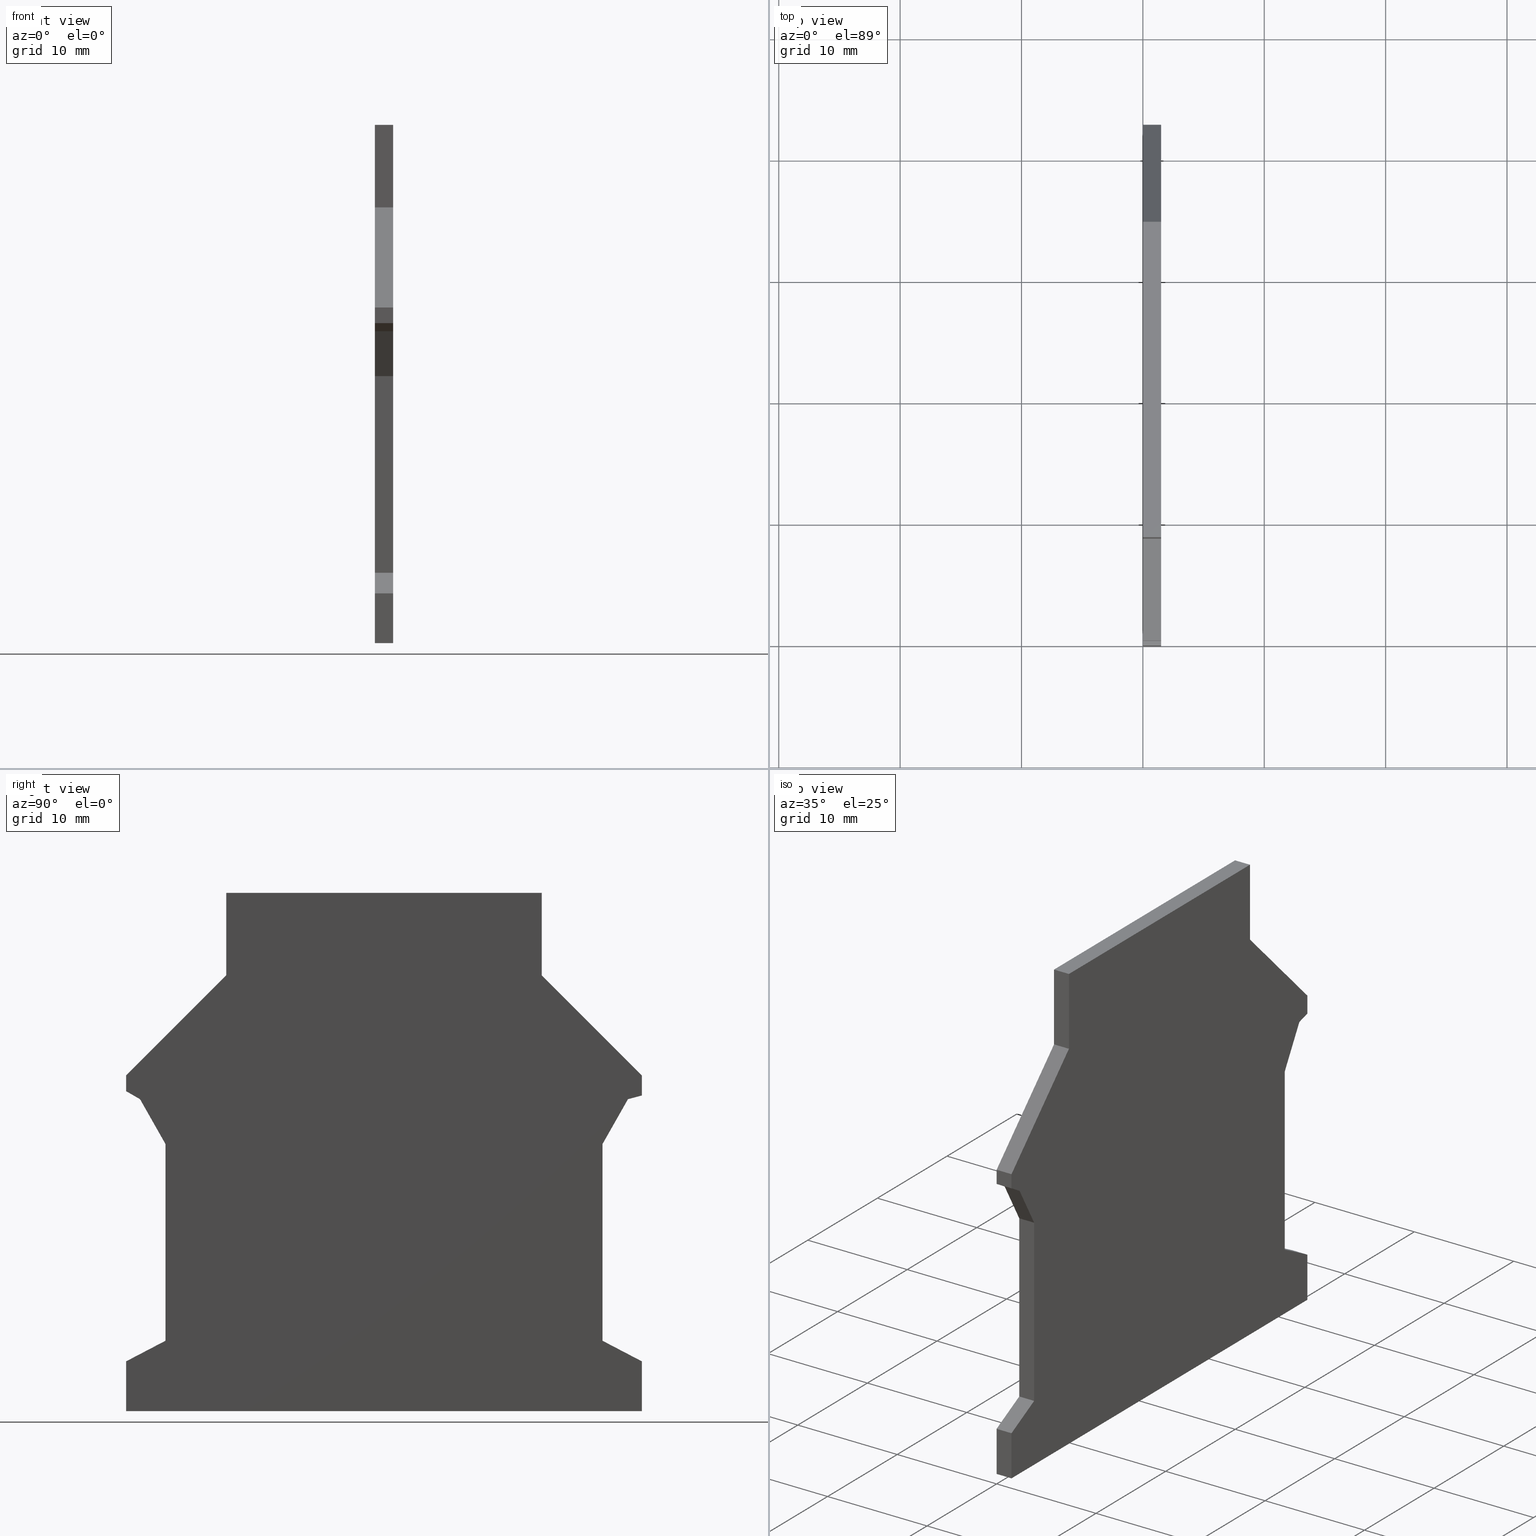
[diagram: canonical four-view strip — front | top / right | iso, engineering-drawing reading convention]
A machine part, canonical four-view strip (front | top / right | iso — engineering-drawing reading convention). The complete STEP part file that produces these views, byte-faithful:
ISO-10303-21;
HEADER;
FILE_DESCRIPTION(('Creo Elements/Direct Modeling STEP Export'),'2;1');
FILE_NAME(
'D:/temp/JobSpoolerServerData/JobServer Files/c538d3b7-5ca8-4cd9-8b99-3a
a1fee67038/work/output/model.stp','2018-01-26T16:11:36',(''),(''),
'Creo Elements/Direct Modeling STEP processor for AP214 (Solid Model)',
'Creo Elements/Direct Modeling 18.1I  14-Aug-2016 (C) Parametric Technol
ogy GmbH','');
FILE_SCHEMA(('AUTOMOTIVE_DESIGN { 1 0 10303 214 1 1 1 1 }'));
ENDSEC;
DATA;
#10=CARTESIAN_POINT('',(25.8666321988984,66.1035915835004,0.));
#20=DIRECTION('',(-0.869685915236196,-0.493605519458383,-0.));
#30=DIRECTION('',(-0.493605519458383,0.869685915236196,0.));
#40=AXIS2_PLACEMENT_3D('',#10,#20,#30);
#50=PLANE('',#40);
#60=CARTESIAN_POINT('',(27.9666321988984,62.4035915835004,0.));
#70=DIRECTION('',(0.,0.,-1.));
#80=VECTOR('',#70,1.);
#90=LINE('',#60,#80);
#100=CARTESIAN_POINT('',(27.9666321988984,62.4035915835004,
-7.78709572820555E-16));
#110=VERTEX_POINT('',#100);
#120=CARTESIAN_POINT('',(27.9666321988984,62.4035915835004,-1.5));
#130=VERTEX_POINT('',#120);
#140=EDGE_CURVE('',#110,#130,#90,.T.);
#150=ORIENTED_EDGE('',*,*,#140,.F.);
#160=CARTESIAN_POINT('',(27.9666321988984,62.4035915835004,-1.5));
#170=DIRECTION('',(-0.493605519458383,0.869685915236196,0.));
#180=VECTOR('',#170,1.);
#190=LINE('',#160,#180);
#200=CARTESIAN_POINT('',(25.8666321988984,66.1035915835004,-1.5));
#210=VERTEX_POINT('',#200);
#220=EDGE_CURVE('',#130,#210,#190,.T.);
#230=ORIENTED_EDGE('',*,*,#220,.F.);
#240=CARTESIAN_POINT('',(25.8666321988984,66.1035915835004,0.));
#250=DIRECTION('',(0.,0.,-1.));
#260=VECTOR('',#250,1.);
#270=LINE('',#240,#260);
#280=CARTESIAN_POINT('',(25.8666321988984,66.1035915835004,
-7.78709572820555E-16));
#290=VERTEX_POINT('',#280);
#300=EDGE_CURVE('',#290,#210,#270,.T.);
#310=ORIENTED_EDGE('',*,*,#300,.T.);
#320=CARTESIAN_POINT('',(63.3848868814258,0.,-7.78709572820555E-16));
#330=DIRECTION('',(0.493605519458383,-0.869685915236196,0.));
#340=VECTOR('',#330,1.);
#350=LINE('',#320,#340);
#360=EDGE_CURVE('',#290,#110,#350,.T.);
#370=ORIENTED_EDGE('',*,*,#360,.F.);
#380=EDGE_LOOP('',(#370,#310,#230,#150));
#390=FACE_OUTER_BOUND('',#380,.T.);
#400=ADVANCED_FACE('',(#390),#50,.T.);
#410=COLOUR_RGB('',0.,0.443137288093567,0.709803938865662);
#420=FILL_AREA_STYLE_COLOUR('',#410);
#430=FILL_AREA_STYLE('',(#420));
#440=SURFACE_STYLE_FILL_AREA(#430);
#450=SURFACE_SIDE_STYLE('',(#440));
#460=SURFACE_STYLE_USAGE(.BOTH.,#450);
#470=PRESENTATION_STYLE_ASSIGNMENT((#460));
#480=CARTESIAN_POINT('',(0.,0.,-1.5));
#490=DIRECTION('',(0.,0.,1.));
#500=DIRECTION('',(1.,0.,0.));
#510=AXIS2_PLACEMENT_3D('',#480,#490,#500);
#520=PLANE('',#510);
#530=CARTESIAN_POINT('',(32.9666321988984,0.,-1.5));
#540=DIRECTION('',(0.,-1.,0.));
#550=VECTOR('',#540,1.);
#560=LINE('',#530,#550);
#570=CARTESIAN_POINT('',(32.9666321988984,83.1035915835004,-1.5));
#580=VERTEX_POINT('',#570);
#590=CARTESIAN_POINT('',(32.9666321988984,76.3035915835004,-1.5));
#600=VERTEX_POINT('',#590);
#610=EDGE_CURVE('',#580,#600,#560,.T.);
#620=ORIENTED_EDGE('',*,*,#610,.F.);
#630=CARTESIAN_POINT('',(-43.336959384602,0.,-1.5));
#640=DIRECTION('',(0.707106781186547,0.707106781186548,0.));
#650=VECTOR('',#640,1.);
#660=LINE('',#630,#650);
#670=CARTESIAN_POINT('',(24.7166321988984,68.0535915835004,-1.5));
#680=VERTEX_POINT('',#670);
#690=EDGE_CURVE('',#680,#600,#660,.T.);
#700=ORIENTED_EDGE('',*,*,#690,.T.);
#710=CARTESIAN_POINT('',(24.7166321988984,0.,-1.5));
#720=DIRECTION('',(0.,-1.,0.));
#730=VECTOR('',#720,1.);
#740=LINE('',#710,#730);
#750=CARTESIAN_POINT('',(24.7166321988984,66.4117331547962,-1.5));
#760=VERTEX_POINT('',#750);
#770=EDGE_CURVE('',#680,#760,#740,.T.);
#780=ORIENTED_EDGE('',*,*,#770,.F.);
#790=CARTESIAN_POINT('',(0.,73.0345347921079,-1.5));
#800=DIRECTION('',(0.96592582628907,-0.258819045102515,0.));
#810=VECTOR('',#800,1.);
#820=LINE('',#790,#810);
#830=EDGE_CURVE('',#760,#210,#820,.T.);
#840=ORIENTED_EDGE('',*,*,#830,.F.);
#850=ORIENTED_EDGE('',*,*,#220,.T.);
#860=CARTESIAN_POINT('',(27.9666321988984,46.2035915835004,-1.5));
#870=DIRECTION('',(0.,1.,0.));
#880=VECTOR('',#870,1.);
#890=LINE('',#860,#880);
#900=CARTESIAN_POINT('',(27.9666321988984,46.2035915835004,-1.5));
#910=VERTEX_POINT('',#900);
#920=EDGE_CURVE('',#910,#130,#890,.T.);
#930=ORIENTED_EDGE('',*,*,#920,.T.);
#940=CARTESIAN_POINT('',(0.,31.5748916640767,-1.5));
#950=DIRECTION('',(-0.886098212808821,-0.463497526699996,0.));
#960=VECTOR('',#950,1.);
#970=LINE('',#940,#960);
#980=CARTESIAN_POINT('',(24.7166321988984,44.5035915835004,-1.5));
#990=VERTEX_POINT('',#980);
#1000=EDGE_CURVE('',#910,#990,#970,.T.);
#1010=ORIENTED_EDGE('',*,*,#1000,.F.);
#1020=CARTESIAN_POINT('',(24.7166321988984,0.,-1.5));
#1030=DIRECTION('',(0.,-1.,0.));
#1040=VECTOR('',#1030,1.);
#1050=LINE('',#1020,#1040);
#1060=CARTESIAN_POINT('',(24.7166321988984,40.4035915835004,-1.5));
#1070=VERTEX_POINT('',#1060);
#1080=EDGE_CURVE('',#990,#1070,#1050,.T.);
#1090=ORIENTED_EDGE('',*,*,#1080,.F.);
#1100=CARTESIAN_POINT('',(0.,40.4035915835004,-1.5));
#1110=DIRECTION('',(1.,0.,0.));
#1120=VECTOR('',#1110,1.);
#1130=LINE('',#1100,#1120);
#1140=CARTESIAN_POINT('',(67.2166321988984,40.4035915835004,-1.5));
#1150=VERTEX_POINT('',#1140);
#1160=EDGE_CURVE('',#1070,#1150,#1130,.T.);
#1170=ORIENTED_EDGE('',*,*,#1160,.F.);
#1180=CARTESIAN_POINT('',(67.2166321988984,0.,-1.5));
#1190=DIRECTION('',(0.,1.,0.));
#1200=VECTOR('',#1190,1.);
#1210=LINE('',#1180,#1200);
#1220=CARTESIAN_POINT('',(67.2166321988985,44.5035915835004,-1.5));
#1230=VERTEX_POINT('',#1220);
#1240=EDGE_CURVE('',#1150,#1230,#1210,.T.);
#1250=ORIENTED_EDGE('',*,*,#1240,.F.);
#1260=CARTESIAN_POINT('',(0.,79.6630607336934,-1.5));
#1270=DIRECTION('',(-0.88609821280882,0.463497526699998,0.));
#1280=VECTOR('',#1270,1.);
#1290=LINE('',#1260,#1280);
#1300=CARTESIAN_POINT('',(63.9666321988985,46.2035915835003,-1.5));
#1310=VERTEX_POINT('',#1300);
#1320=EDGE_CURVE('',#1230,#1310,#1290,.T.);
#1330=ORIENTED_EDGE('',*,*,#1320,.F.);
#1340=CARTESIAN_POINT('',(63.9666321988984,62.4035915835004,-1.5));
#1350=DIRECTION('',(0.,-1.,0.));
#1360=VECTOR('',#1350,1.);
#1370=LINE('',#1340,#1360);
#1380=CARTESIAN_POINT('',(63.9666321988984,62.4035915835004,-1.5));
#1390=VERTEX_POINT('',#1380);
#1400=EDGE_CURVE('',#1390,#1310,#1370,.T.);
#1410=ORIENTED_EDGE('',*,*,#1400,.T.);
#1420=CARTESIAN_POINT('',(66.0666321988984,66.1035915835004,-1.5));
#1430=DIRECTION('',(-0.493605519458384,-0.869685915236195,0.));
#1440=VECTOR('',#1430,1.);
#1450=LINE('',#1420,#1440);
#1460=CARTESIAN_POINT('',(66.0666321988984,66.1035915835004,-1.5));
#1470=VERTEX_POINT('',#1460);
#1480=EDGE_CURVE('',#1470,#1390,#1450,.T.);
#1490=ORIENTED_EDGE('',*,*,#1480,.T.);
#1500=CARTESIAN_POINT('',(0.,27.9600036990134,-1.5));
#1510=DIRECTION('',(0.866025403784433,0.50000000000001,0.));
#1520=VECTOR('',#1510,1.);
#1530=LINE('',#1500,#1520);
#1540=CARTESIAN_POINT('',(67.2166321988984,66.7675443930685,-1.5));
#1550=VERTEX_POINT('',#1540);
#1560=EDGE_CURVE('',#1470,#1550,#1530,.T.);
#1570=ORIENTED_EDGE('',*,*,#1560,.F.);
#1580=CARTESIAN_POINT('',(67.2166321988984,0.,-1.5));
#1590=DIRECTION('',(0.,1.,0.));
#1600=VECTOR('',#1590,1.);
#1610=LINE('',#1580,#1600);
#1620=CARTESIAN_POINT('',(67.2166321988984,68.0535915835004,-1.5));
#1630=VERTEX_POINT('',#1620);
#1640=EDGE_CURVE('',#1550,#1630,#1610,.T.);
#1650=ORIENTED_EDGE('',*,*,#1640,.F.);
#1660=CARTESIAN_POINT('',(135.270223782399,0.,-1.5));
#1670=DIRECTION('',(0.707106781186547,-0.707106781186548,0.));
#1680=VECTOR('',#1670,1.);
#1690=LINE('',#1660,#1680);
#1700=CARTESIAN_POINT('',(58.9666321988984,76.3035915835004,-1.5));
#1710=VERTEX_POINT('',#1700);
#1720=EDGE_CURVE('',#1710,#1630,#1690,.T.);
#1730=ORIENTED_EDGE('',*,*,#1720,.T.);
#1740=CARTESIAN_POINT('',(58.9666321988984,0.,-1.5));
#1750=DIRECTION('',(0.,1.,0.));
#1760=VECTOR('',#1750,1.);
#1770=LINE('',#1740,#1760);
#1780=CARTESIAN_POINT('',(58.9666321988984,83.1035915835004,-1.5));
#1790=VERTEX_POINT('',#1780);
#1800=EDGE_CURVE('',#1710,#1790,#1770,.T.);
#1810=ORIENTED_EDGE('',*,*,#1800,.F.);
#1820=CARTESIAN_POINT('',(0.,83.1035915835004,-1.5));
#1830=DIRECTION('',(-1.,0.,0.));
#1840=VECTOR('',#1830,1.);
#1850=LINE('',#1820,#1840);
#1860=EDGE_CURVE('',#1790,#580,#1850,.T.);
#1870=ORIENTED_EDGE('',*,*,#1860,.F.);
#1880=EDGE_LOOP('',(#1870,#1810,#1730,#1650,#1570,#1490,#1410,#1330,
#1250,#1170,#1090,#1010,#930,#850,#840,#780,#700,#620));
#1890=FACE_OUTER_BOUND('',#1880,.T.);
#1900=ADVANCED_FACE('',(#1890),#520,.F.);
#1910=COLOUR_RGB('',0.,0.443137288093567,0.709803938865662);
#1920=FILL_AREA_STYLE_COLOUR('',#1910);
#1930=FILL_AREA_STYLE('',(#1920));
#1940=SURFACE_STYLE_FILL_AREA(#1930);
#1950=SURFACE_SIDE_STYLE('',(#1940));
#1960=SURFACE_STYLE_USAGE(.BOTH.,#1950);
#1970=PRESENTATION_STYLE_ASSIGNMENT((#1960));
#1980=CARTESIAN_POINT('',(43.3666321988984,83.1035915835004,0.));
#1990=DIRECTION('',(-0.,1.,0.));
#2000=DIRECTION('',(1.,0.,0.));
#2010=AXIS2_PLACEMENT_3D('',#1980,#1990,#2000);
#2020=PLANE('',#2010);
#2030=CARTESIAN_POINT('',(32.9666321988984,83.1035915835004,0.));
#2040=DIRECTION('',(0.,0.,1.));
#2050=VECTOR('',#2040,1.);
#2060=LINE('',#2030,#2050);
#2070=CARTESIAN_POINT('',(32.9666321988984,83.1035915835004,
8.86450742699044E-16));
#2080=VERTEX_POINT('',#2070);
#2090=EDGE_CURVE('',#580,#2080,#2060,.T.);
#2100=ORIENTED_EDGE('',*,*,#2090,.T.);
#2110=ORIENTED_EDGE('',*,*,#1860,.T.);
#2120=CARTESIAN_POINT('',(58.9666321988984,83.1035915835004,0.));
#2130=DIRECTION('',(0.,0.,1.));
#2140=VECTOR('',#2130,1.);
#2150=LINE('',#2120,#2140);
#2160=CARTESIAN_POINT('',(58.9666321988984,83.1035915835004,
-5.36844862369917E-16));
#2170=VERTEX_POINT('',#2160);
#2180=EDGE_CURVE('',#1790,#2170,#2150,.T.);
#2190=ORIENTED_EDGE('',*,*,#2180,.F.);
#2200=CARTESIAN_POINT('',(0.,83.1035915835004,2.69111469356893E-15));
#2210=DIRECTION('',(-1.,0.,5.47421386564985E-17));
#2220=VECTOR('',#2210,1.);
#2230=LINE('',#2200,#2220);
#2240=EDGE_CURVE('',#2170,#2080,#2230,.T.);
#2250=ORIENTED_EDGE('',*,*,#2240,.F.);
#2260=EDGE_LOOP('',(#2250,#2190,#2110,#2100));
#2270=FACE_OUTER_BOUND('',#2260,.T.);
#2280=ADVANCED_FACE('',(#2270),#2020,.T.);
#2290=COLOUR_RGB('',0.,0.443137288093567,0.709803938865662);
#2300=FILL_AREA_STYLE_COLOUR('',#2290);
#2310=FILL_AREA_STYLE('',(#2300));
#2320=SURFACE_STYLE_FILL_AREA(#2310);
#2330=SURFACE_SIDE_STYLE('',(#2320));
#2340=SURFACE_STYLE_USAGE(.BOTH.,#2330);
#2350=PRESENTATION_STYLE_ASSIGNMENT((#2340));
#2360=CARTESIAN_POINT('',(67.2166321988984,41.4035915835004,0.));
#2370=DIRECTION('',(1.,0.,0.));
#2380=DIRECTION('',(0.,-1.,0.));
#2390=AXIS2_PLACEMENT_3D('',#2360,#2370,#2380);
#2400=PLANE('',#2390);
#2410=CARTESIAN_POINT('',(67.2166321988984,44.5035915835004,0.));
#2420=DIRECTION('',(0.,0.,1.));
#2430=VECTOR('',#2420,1.);
#2440=LINE('',#2410,#2430);
#2450=CARTESIAN_POINT('',(67.2166321988985,44.5035915835004,
-1.51978719215006E-15));
#2460=VERTEX_POINT('',#2450);
#2470=EDGE_CURVE('',#1230,#2460,#2440,.T.);
#2480=ORIENTED_EDGE('',*,*,#2470,.T.);
#2490=ORIENTED_EDGE('',*,*,#1240,.T.);
#2500=CARTESIAN_POINT('',(67.2166321988984,40.4035915835004,0.));
#2510=DIRECTION('',(0.,0.,1.));
#2520=VECTOR('',#2510,1.);
#2530=LINE('',#2500,#2520);
#2540=CARTESIAN_POINT('',(67.2166321988984,40.4035915835004,
-9.8846750628603E-16));
#2550=VERTEX_POINT('',#2540);
#2560=EDGE_CURVE('',#1150,#2550,#2530,.T.);
#2570=ORIENTED_EDGE('',*,*,#2560,.F.);
#2580=CARTESIAN_POINT('',(67.2166321988984,0.,-9.8846750628603E-16));
#2590=DIRECTION('',(0.,1.,0.));
#2600=VECTOR('',#2590,1.);
#2610=LINE('',#2580,#2600);
#2620=EDGE_CURVE('',#2550,#2460,#2610,.T.);
#2630=ORIENTED_EDGE('',*,*,#2620,.F.);
#2640=EDGE_LOOP('',(#2630,#2570,#2490,#2480));
#2650=FACE_OUTER_BOUND('',#2640,.T.);
#2660=ADVANCED_FACE('',(#2650),#2400,.T.);
#2670=COLOUR_RGB('',0.,0.443137288093567,0.709803938865662);
#2680=FILL_AREA_STYLE_COLOUR('',#2670);
#2690=FILL_AREA_STYLE('',(#2680));
#2700=SURFACE_STYLE_FILL_AREA(#2690);
#2710=SURFACE_SIDE_STYLE('',(#2700));
#2720=SURFACE_STYLE_USAGE(.BOTH.,#2710);
#2730=PRESENTATION_STYLE_ASSIGNMENT((#2720));
#2740=CARTESIAN_POINT('',(24.7166321988984,67.8464848023139,0.));
#2750=DIRECTION('',(-1.,0.,0.));
#2760=DIRECTION('',(0.,1.,0.));
#2770=AXIS2_PLACEMENT_3D('',#2740,#2750,#2760);
#2780=PLANE('',#2770);
#2790=CARTESIAN_POINT('',(24.7166321988984,66.4117331547962,0.));
#2800=DIRECTION('',(0.,0.,1.));
#2810=VECTOR('',#2800,1.);
#2820=LINE('',#2790,#2810);
#2830=CARTESIAN_POINT('',(24.7166321988984,66.4117331547962,
1.33807338661516E-15));
#2840=VERTEX_POINT('',#2830);
#2850=EDGE_CURVE('',#760,#2840,#2820,.T.);
#2860=ORIENTED_EDGE('',*,*,#2850,.T.);
#2870=ORIENTED_EDGE('',*,*,#770,.T.);
#2880=CARTESIAN_POINT('',(24.7166321988984,68.0535915835004,0.));
#2890=DIRECTION('',(0.,0.,1.));
#2900=VECTOR('',#2890,1.);
#2910=LINE('',#2880,#2900);
#2920=CARTESIAN_POINT('',(24.7166321988984,68.0535915835004,
5.06347253315185E-15));
#2930=VERTEX_POINT('',#2920);
#2940=EDGE_CURVE('',#680,#2930,#2910,.T.);
#2950=ORIENTED_EDGE('',*,*,#2940,.F.);
#2960=CARTESIAN_POINT('',(24.7166321988984,0.,1.33807338661516E-15));
#2970=DIRECTION('',(0.,-1.,0.));
#2980=VECTOR('',#2970,1.);
#2990=LINE('',#2960,#2980);
#3000=EDGE_CURVE('',#2930,#2840,#2990,.T.);
#3010=ORIENTED_EDGE('',*,*,#3000,.F.);
#3020=EDGE_LOOP('',(#3010,#2950,#2870,#2860));
#3030=FACE_OUTER_BOUND('',#3020,.T.);
#3040=ADVANCED_FACE('',(#3030),#2780,.T.);
#3050=COLOUR_RGB('',0.,0.443137288093567,0.709803938865662);
#3060=FILL_AREA_STYLE_COLOUR('',#3050);
#3070=FILL_AREA_STYLE('',(#3060));
#3080=SURFACE_STYLE_FILL_AREA(#3070);
#3090=SURFACE_SIDE_STYLE('',(#3080));
#3100=SURFACE_STYLE_USAGE(.BOTH.,#3090);
#3110=PRESENTATION_STYLE_ASSIGNMENT((#3100));
#3120=CARTESIAN_POINT('',(25.4578698380482,66.2131191279864,0.));
#3130=DIRECTION('',(-0.258819045102515,-0.96592582628907,-0.));
#3140=DIRECTION('',(-0.96592582628907,0.258819045102515,0.));
#3150=AXIS2_PLACEMENT_3D('',#3120,#3130,#3140);
#3160=PLANE('',#3150);
#3170=CARTESIAN_POINT('',(0.,73.0345347921079,2.69111469356893E-15));
#3180=DIRECTION('',(0.96592582628907,-0.258819045102515,
-5.55111512312578E-17));
#3190=VECTOR('',#3180,1.);
#3200=LINE('',#3170,#3190);
#3210=EDGE_CURVE('',#2840,#290,#3200,.T.);
#3220=ORIENTED_EDGE('',*,*,#3210,.F.);
#3230=ORIENTED_EDGE('',*,*,#300,.F.);
#3240=ORIENTED_EDGE('',*,*,#830,.T.);
#3250=ORIENTED_EDGE('',*,*,#2850,.F.);
#3260=EDGE_LOOP('',(#3250,#3240,#3230,#3220));
#3270=FACE_OUTER_BOUND('',#3260,.T.);
#3280=ADVANCED_FACE('',(#3270),#3160,.T.);
#3290=COLOUR_RGB('',0.,0.443137288093567,0.709803938865662);
#3300=FILL_AREA_STYLE_COLOUR('',#3290);
#3310=FILL_AREA_STYLE('',(#3300));
#3320=SURFACE_STYLE_FILL_AREA(#3310);
#3330=SURFACE_SIDE_STYLE('',(#3320));
#3340=SURFACE_STYLE_USAGE(.BOTH.,#3330);
#3350=PRESENTATION_STYLE_ASSIGNMENT((#3340));
#3360=CARTESIAN_POINT('',(32.9666321988984,76.3035915835004,0.));
#3370=DIRECTION('',(-0.707106781186548,0.707106781186547,0.));
#3380=DIRECTION('',(0.707106781186547,0.707106781186548,0.));
#3390=AXIS2_PLACEMENT_3D('',#3360,#3370,#3380);
#3400=PLANE('',#3390);
#3410=ORIENTED_EDGE('',*,*,#2940,.T.);
#3420=ORIENTED_EDGE('',*,*,#690,.F.);
#3430=CARTESIAN_POINT('',(32.9666321988984,76.3035915835004,0.));
#3440=DIRECTION('',(0.,0.,-1.));
#3450=VECTOR('',#3440,1.);
#3460=LINE('',#3430,#3450);
#3470=CARTESIAN_POINT('',(32.9666321988984,76.3035915835004,
8.86450742699044E-16));
#3480=VERTEX_POINT('',#3470);
#3490=EDGE_CURVE('',#3480,#600,#3460,.T.);
#3500=ORIENTED_EDGE('',*,*,#3490,.T.);
#3510=CARTESIAN_POINT('',(-43.336959384602,0.,5.06347253315185E-15));
#3520=DIRECTION('',(-0.707106781186547,-0.707106781186548,0.));
#3530=VECTOR('',#3520,1.);
#3540=LINE('',#3510,#3530);
#3550=EDGE_CURVE('',#3480,#2930,#3540,.T.);
#3560=ORIENTED_EDGE('',*,*,#3550,.F.);
#3570=EDGE_LOOP('',(#3560,#3500,#3420,#3410));
#3580=FACE_OUTER_BOUND('',#3570,.T.);
#3590=ADVANCED_FACE('',(#3580),#3400,.T.);
#3600=COLOUR_RGB('',0.,0.443137288093567,0.709803938865662);
#3610=FILL_AREA_STYLE_COLOUR('',#3600);
#3620=FILL_AREA_STYLE('',(#3610));
#3630=SURFACE_STYLE_FILL_AREA(#3620);
#3640=SURFACE_SIDE_STYLE('',(#3630));
#3650=SURFACE_STYLE_USAGE(.BOTH.,#3640);
#3660=PRESENTATION_STYLE_ASSIGNMENT((#3650));
#3670=CARTESIAN_POINT('',(32.9666321988984,81.6035915835004,0.));
#3680=DIRECTION('',(-1.,0.,0.));
#3690=DIRECTION('',(0.,1.,0.));
#3700=AXIS2_PLACEMENT_3D('',#3670,#3680,#3690);
#3710=PLANE('',#3700);
#3720=CARTESIAN_POINT('',(32.9666321988984,0.,8.86450742699044E-16));
#3730=DIRECTION('',(0.,-1.,0.));
#3740=VECTOR('',#3730,1.);
#3750=LINE('',#3720,#3740);
#3760=EDGE_CURVE('',#2080,#3480,#3750,.T.);
#3770=ORIENTED_EDGE('',*,*,#3760,.F.);
#3780=ORIENTED_EDGE('',*,*,#3490,.F.);
#3790=ORIENTED_EDGE('',*,*,#610,.T.);
#3800=ORIENTED_EDGE('',*,*,#2090,.F.);
#3810=EDGE_LOOP('',(#3800,#3790,#3780,#3770));
#3820=FACE_OUTER_BOUND('',#3810,.T.);
#3830=ADVANCED_FACE('',(#3820),#3710,.T.);
#3840=COLOUR_RGB('',0.,0.443137288093567,0.709803938865662);
#3850=FILL_AREA_STYLE_COLOUR('',#3840);
#3860=FILL_AREA_STYLE('',(#3850));
#3870=SURFACE_STYLE_FILL_AREA(#3860);
#3880=SURFACE_SIDE_STYLE('',(#3870));
#3890=SURFACE_STYLE_USAGE(.BOTH.,#3880);
#3900=PRESENTATION_STYLE_ASSIGNMENT((#3890));
#3910=CARTESIAN_POINT('',(18.7384011988984,36.1335891835004,
1.66533453693773E-15));
#3920=DIRECTION('',(-5.47421386564985E-17,-0.,-1.));
#3930=DIRECTION('',(1.,0.,-5.47421386564985E-17));
#3940=AXIS2_PLACEMENT_3D('',#3910,#3920,#3930);
#3950=PLANE('',#3940);
#3960=ORIENTED_EDGE('',*,*,#2240,.T.);
#3970=CARTESIAN_POINT('',(58.9666321988984,0.,-5.36844862369917E-16));
#3980=DIRECTION('',(0.,1.,0.));
#3990=VECTOR('',#3980,1.);
#4000=LINE('',#3970,#3990);
#4010=CARTESIAN_POINT('',(58.9666321988984,76.3035915835004,
-4.71386665282273E-15));
#4020=VERTEX_POINT('',#4010);
#4030=EDGE_CURVE('',#4020,#2170,#4000,.T.);
#4040=ORIENTED_EDGE('',*,*,#4030,.T.);
#4050=CARTESIAN_POINT('',(135.270223782399,0.,-4.71386665282273E-15));
#4060=DIRECTION('',(-0.707106781186547,0.707106781186548,0.));
#4070=VECTOR('',#4060,1.);
#4080=LINE('',#4050,#4070);
#4090=CARTESIAN_POINT('',(67.2166321988984,68.0535915835004,
-9.8846750628603E-16));
#4100=VERTEX_POINT('',#4090);
#4110=EDGE_CURVE('',#4100,#4020,#4080,.T.);
#4120=ORIENTED_EDGE('',*,*,#4110,.T.);
#4130=CARTESIAN_POINT('',(67.2166321988984,0.,-9.8846750628603E-16));
#4140=DIRECTION('',(0.,1.,0.));
#4150=VECTOR('',#4140,1.);
#4160=LINE('',#4130,#4150);
#4170=CARTESIAN_POINT('',(67.2166321988984,66.7675443930685,
-9.8846750628603E-16));
#4180=VERTEX_POINT('',#4170);
#4190=EDGE_CURVE('',#4180,#4100,#4160,.T.);
#4200=ORIENTED_EDGE('',*,*,#4190,.T.);
#4210=CARTESIAN_POINT('',(0.,27.9600036990134,2.69111469356893E-15));
#4220=DIRECTION('',(0.866025403784433,0.50000000000001,0.));
#4230=VECTOR('',#4220,1.);
#4240=LINE('',#4210,#4230);
#4250=CARTESIAN_POINT('',(66.0666321988984,66.1035915835004,
1.12831545314969E-15));
#4260=VERTEX_POINT('',#4250);
#4270=EDGE_CURVE('',#4260,#4180,#4240,.T.);
#4280=ORIENTED_EDGE('',*,*,#4270,.T.);
#4290=CARTESIAN_POINT('',(28.5483775163709,0.,1.12831545314969E-15));
#4300=DIRECTION('',(0.493605519458384,0.869685915236195,0.));
#4310=VECTOR('',#4300,1.);
#4320=LINE('',#4290,#4310);
#4330=CARTESIAN_POINT('',(63.9666321988984,62.4035915835004,
1.12831545314969E-15));
#4340=VERTEX_POINT('',#4330);
#4350=EDGE_CURVE('',#4340,#4260,#4320,.T.);
#4360=ORIENTED_EDGE('',*,*,#4350,.T.);
#4370=CARTESIAN_POINT('',(63.9666321988984,0.,-8.1055555565241E-16));
#4380=DIRECTION('',(0.,1.,0.));
#4390=VECTOR('',#4380,1.);
#4400=LINE('',#4370,#4390);
#4410=CARTESIAN_POINT('',(63.9666321988985,46.2035915835003,
-1.31618533527496E-15));
#4420=VERTEX_POINT('',#4410);
#4430=EDGE_CURVE('',#4420,#4340,#4400,.T.);
#4440=ORIENTED_EDGE('',*,*,#4430,.T.);
#4450=CARTESIAN_POINT('',(0.,79.6630607336934,2.69111469356893E-15));
#4460=DIRECTION('',(-0.88609821280882,0.463497526699998,
5.55111512312578E-17));
#4470=VECTOR('',#4460,1.);
#4480=LINE('',#4450,#4470);
#4490=EDGE_CURVE('',#2460,#4420,#4480,.T.);
#4500=ORIENTED_EDGE('',*,*,#4490,.T.);
#4510=ORIENTED_EDGE('',*,*,#2620,.T.);
#4520=CARTESIAN_POINT('',(0.,40.4035915835004,2.69111469356893E-15));
#4530=DIRECTION('',(1.,0.,-5.47421386564985E-17));
#4540=VECTOR('',#4530,1.);
#4550=LINE('',#4520,#4540);
#4560=CARTESIAN_POINT('',(24.7166321988984,40.4035915835004,
1.33807338661516E-15));
#4570=VERTEX_POINT('',#4560);
#4580=EDGE_CURVE('',#4570,#2550,#4550,.T.);
#4590=ORIENTED_EDGE('',*,*,#4580,.T.);
#4600=CARTESIAN_POINT('',(24.7166321988984,0.,1.33807338661516E-15));
#4610=DIRECTION('',(0.,-1.,0.));
#4620=VECTOR('',#4610,1.);
#4630=LINE('',#4600,#4620);
#4640=CARTESIAN_POINT('',(24.7166321988984,44.5035915835004,
1.1426986285244E-15));
#4650=VERTEX_POINT('',#4640);
#4660=EDGE_CURVE('',#4650,#4570,#4630,.T.);
#4670=ORIENTED_EDGE('',*,*,#4660,.T.);
#4680=CARTESIAN_POINT('',(0.,31.5748916640767,2.69111469356893E-15));
#4690=DIRECTION('',(-0.886098212808821,-0.463497526699996,
5.55111512312578E-17));
#4700=VECTOR('',#4690,1.);
#4710=LINE('',#4680,#4700);
#4720=CARTESIAN_POINT('',(27.9666321988984,46.2035915835004,
1.16016143598154E-15));
#4730=VERTEX_POINT('',#4720);
#4740=EDGE_CURVE('',#4730,#4650,#4710,.T.);
#4750=ORIENTED_EDGE('',*,*,#4740,.T.);
#4760=CARTESIAN_POINT('',(27.9666321988984,0.,1.16016143598154E-15));
#4770=DIRECTION('',(0.,-1.,0.));
#4780=VECTOR('',#4770,1.);
#4790=LINE('',#4760,#4780);
#4800=EDGE_CURVE('',#110,#4730,#4790,.T.);
#4810=ORIENTED_EDGE('',*,*,#4800,.T.);
#4820=ORIENTED_EDGE('',*,*,#360,.T.);
#4830=ORIENTED_EDGE('',*,*,#3210,.T.);
#4840=ORIENTED_EDGE('',*,*,#3000,.T.);
#4850=ORIENTED_EDGE('',*,*,#3550,.T.);
#4860=ORIENTED_EDGE('',*,*,#3760,.T.);
#4870=EDGE_LOOP('',(#4860,#4850,#4840,#4830,#4820,#4810,#4750,#4670,
#4590,#4510,#4500,#4440,#4360,#4280,#4200,#4120,#4040,#3960));
#4880=FACE_OUTER_BOUND('',#4870,.T.);
#4890=ADVANCED_FACE('',(#4880),#3950,.F.);
#4900=COLOUR_RGB('',0.,0.443137288093567,0.709803938865662);
#4910=FILL_AREA_STYLE_COLOUR('',#4900);
#4920=FILL_AREA_STYLE('',(#4910));
#4930=SURFACE_STYLE_FILL_AREA(#4920);
#4940=SURFACE_SIDE_STYLE('',(#4930));
#4950=SURFACE_STYLE_USAGE(.BOTH.,#4940);
#4960=PRESENTATION_STYLE_ASSIGNMENT((#4950));
#4970=CARTESIAN_POINT('',(27.9666321988984,62.4035915835004,0.));
#4980=DIRECTION('',(-1.,0.,0.));
#4990=DIRECTION('',(0.,1.,0.));
#5000=AXIS2_PLACEMENT_3D('',#4970,#4980,#4990);
#5010=PLANE('',#5000);
#5020=CARTESIAN_POINT('',(27.9666321988984,46.2035915835004,0.));
#5030=DIRECTION('',(0.,0.,-1.));
#5040=VECTOR('',#5030,1.);
#5050=LINE('',#5020,#5040);
#5060=EDGE_CURVE('',#4730,#910,#5050,.T.);
#5070=ORIENTED_EDGE('',*,*,#5060,.F.);
#5080=ORIENTED_EDGE('',*,*,#920,.F.);
#5090=ORIENTED_EDGE('',*,*,#140,.T.);
#5100=ORIENTED_EDGE('',*,*,#4800,.F.);
#5110=EDGE_LOOP('',(#5100,#5090,#5080,#5070));
#5120=FACE_OUTER_BOUND('',#5110,.T.);
#5130=ADVANCED_FACE('',(#5120),#5010,.T.);
#5140=COLOUR_RGB('',0.,0.443137288093567,0.709803938865662);
#5150=FILL_AREA_STYLE_COLOUR('',#5140);
#5160=FILL_AREA_STYLE('',(#5150));
#5170=SURFACE_STYLE_FILL_AREA(#5160);
#5180=SURFACE_SIDE_STYLE('',(#5170));
#5190=SURFACE_STYLE_USAGE(.BOTH.,#5180);
#5200=PRESENTATION_STYLE_ASSIGNMENT((#5190));
#5210=CARTESIAN_POINT('',(58.9666321988984,76.3035915835004,0.));
#5220=DIRECTION('',(1.,0.,0.));
#5230=DIRECTION('',(0.,-1.,0.));
#5240=AXIS2_PLACEMENT_3D('',#5210,#5220,#5230);
#5250=PLANE('',#5240);
#5260=ORIENTED_EDGE('',*,*,#2180,.T.);
#5270=ORIENTED_EDGE('',*,*,#1800,.T.);
#5280=CARTESIAN_POINT('',(58.9666321988984,76.3035915835004,0.));
#5290=DIRECTION('',(0.,0.,-1.));
#5300=VECTOR('',#5290,1.);
#5310=LINE('',#5280,#5300);
#5320=EDGE_CURVE('',#4020,#1710,#5310,.T.);
#5330=ORIENTED_EDGE('',*,*,#5320,.T.);
#5340=ORIENTED_EDGE('',*,*,#4030,.F.);
#5350=EDGE_LOOP('',(#5340,#5330,#5270,#5260));
#5360=FACE_OUTER_BOUND('',#5350,.T.);
#5370=ADVANCED_FACE('',(#5360),#5250,.T.);
#5380=COLOUR_RGB('',0.,0.443137288093567,0.709803938865662);
#5390=FILL_AREA_STYLE_COLOUR('',#5380);
#5400=FILL_AREA_STYLE('',(#5390));
#5410=SURFACE_STYLE_FILL_AREA(#5400);
#5420=SURFACE_SIDE_STYLE('',(#5410));
#5430=SURFACE_STYLE_USAGE(.BOTH.,#5420);
#5440=PRESENTATION_STYLE_ASSIGNMENT((#5430));
#5450=CARTESIAN_POINT('',(67.0701855894917,68.2000381929071,0.));
#5460=DIRECTION('',(0.707106781186548,0.707106781186547,0.));
#5470=DIRECTION('',(0.707106781186547,-0.707106781186548,0.));
#5480=AXIS2_PLACEMENT_3D('',#5450,#5460,#5470);
#5490=PLANE('',#5480);
#5500=ORIENTED_EDGE('',*,*,#4110,.F.);
#5510=ORIENTED_EDGE('',*,*,#5320,.F.);
#5520=ORIENTED_EDGE('',*,*,#1720,.F.);
#5530=CARTESIAN_POINT('',(67.2166321988984,68.0535915835004,0.));
#5540=DIRECTION('',(0.,0.,1.));
#5550=VECTOR('',#5540,1.);
#5560=LINE('',#5530,#5550);
#5570=EDGE_CURVE('',#1630,#4100,#5560,.T.);
#5580=ORIENTED_EDGE('',*,*,#5570,.F.);
#5590=EDGE_LOOP('',(#5580,#5520,#5510,#5500));
#5600=FACE_OUTER_BOUND('',#5590,.T.);
#5610=ADVANCED_FACE('',(#5600),#5490,.T.);
#5620=COLOUR_RGB('',0.,0.443137288093567,0.709803938865662);
#5630=FILL_AREA_STYLE_COLOUR('',#5620);
#5640=FILL_AREA_STYLE('',(#5630));
#5650=SURFACE_STYLE_FILL_AREA(#5640);
#5660=SURFACE_SIDE_STYLE('',(#5650));
#5670=SURFACE_STYLE_USAGE(.BOTH.,#5660);
#5680=PRESENTATION_STYLE_ASSIGNMENT((#5670));
#5690=CARTESIAN_POINT('',(27.9666321988984,46.2035915835004,0.));
#5700=DIRECTION('',(-0.463497526699996,0.886098212808821,0.));
#5710=DIRECTION('',(0.886098212808821,0.463497526699996,0.));
#5720=AXIS2_PLACEMENT_3D('',#5690,#5700,#5710);
#5730=PLANE('',#5720);
#5740=CARTESIAN_POINT('',(24.7166321988984,44.5035915835004,0.));
#5750=DIRECTION('',(0.,0.,1.));
#5760=VECTOR('',#5750,1.);
#5770=LINE('',#5740,#5760);
#5780=EDGE_CURVE('',#990,#4650,#5770,.T.);
#5790=ORIENTED_EDGE('',*,*,#5780,.T.);
#5800=ORIENTED_EDGE('',*,*,#1000,.T.);
#5810=ORIENTED_EDGE('',*,*,#5060,.T.);
#5820=ORIENTED_EDGE('',*,*,#4740,.F.);
#5830=EDGE_LOOP('',(#5820,#5810,#5800,#5790));
#5840=FACE_OUTER_BOUND('',#5830,.T.);
#5850=ADVANCED_FACE('',(#5840),#5730,.T.);
#5860=COLOUR_RGB('',0.,0.443137288093567,0.709803938865662);
#5870=FILL_AREA_STYLE_COLOUR('',#5860);
#5880=FILL_AREA_STYLE('',(#5870));
#5890=SURFACE_STYLE_FILL_AREA(#5880);
#5900=SURFACE_SIDE_STYLE('',(#5890));
#5910=SURFACE_STYLE_USAGE(.BOTH.,#5900);
#5920=PRESENTATION_STYLE_ASSIGNMENT((#5910));
#5930=CARTESIAN_POINT('',(67.2166321988984,67.3448946622581,0.));
#5940=DIRECTION('',(1.,0.,0.));
#5950=DIRECTION('',(0.,-1.,0.));
#5960=AXIS2_PLACEMENT_3D('',#5930,#5940,#5950);
#5970=PLANE('',#5960);
#5980=ORIENTED_EDGE('',*,*,#4190,.F.);
#5990=ORIENTED_EDGE('',*,*,#5570,.T.);
#6000=ORIENTED_EDGE('',*,*,#1640,.T.);
#6010=CARTESIAN_POINT('',(67.2166321988984,66.7675443930685,0.));
#6020=DIRECTION('',(0.,0.,1.));
#6030=VECTOR('',#6020,1.);
#6040=LINE('',#6010,#6030);
#6050=EDGE_CURVE('',#1550,#4180,#6040,.T.);
#6060=ORIENTED_EDGE('',*,*,#6050,.F.);
#6070=EDGE_LOOP('',(#6060,#6000,#5990,#5980));
#6080=FACE_OUTER_BOUND('',#6070,.T.);
#6090=ADVANCED_FACE('',(#6080),#5970,.T.);
#6100=COLOUR_RGB('',0.,0.443137288093567,0.709803938865662);
#6110=FILL_AREA_STYLE_COLOUR('',#6100);
#6120=FILL_AREA_STYLE('',(#6110));
#6130=SURFACE_STYLE_FILL_AREA(#6120);
#6140=SURFACE_SIDE_STYLE('',(#6130));
#6150=SURFACE_STYLE_USAGE(.BOTH.,#6140);
#6160=PRESENTATION_STYLE_ASSIGNMENT((#6150));
#6170=CARTESIAN_POINT('',(25.7166321988984,40.4035915835004,0.));
#6180=DIRECTION('',(-0.,-1.,-0.));
#6190=DIRECTION('',(-1.,0.,0.));
#6200=AXIS2_PLACEMENT_3D('',#6170,#6180,#6190);
#6210=PLANE('',#6200);
#6220=ORIENTED_EDGE('',*,*,#2560,.T.);
#6230=ORIENTED_EDGE('',*,*,#1160,.T.);
#6240=CARTESIAN_POINT('',(24.7166321988984,40.4035915835004,0.));
#6250=DIRECTION('',(0.,0.,1.));
#6260=VECTOR('',#6250,1.);
#6270=LINE('',#6240,#6260);
#6280=EDGE_CURVE('',#1070,#4570,#6270,.T.);
#6290=ORIENTED_EDGE('',*,*,#6280,.F.);
#6300=ORIENTED_EDGE('',*,*,#4580,.F.);
#6310=EDGE_LOOP('',(#6300,#6290,#6230,#6220));
#6320=FACE_OUTER_BOUND('',#6310,.T.);
#6330=ADVANCED_FACE('',(#6320),#6210,.T.);
#6340=COLOUR_RGB('',0.,0.443137288093567,0.709803938865662);
#6350=FILL_AREA_STYLE_COLOUR('',#6340);
#6360=FILL_AREA_STYLE('',(#6350));
#6370=SURFACE_STYLE_FILL_AREA(#6360);
#6380=SURFACE_SIDE_STYLE('',(#6370));
#6390=SURFACE_STYLE_USAGE(.BOTH.,#6380);
#6400=PRESENTATION_STYLE_ASSIGNMENT((#6390));
#6410=CARTESIAN_POINT('',(66.0666321988984,66.1035915835004,0.));
#6420=DIRECTION('',(0.50000000000001,-0.866025403784433,0.));
#6430=DIRECTION('',(-0.866025403784433,-0.50000000000001,0.));
#6440=AXIS2_PLACEMENT_3D('',#6410,#6420,#6430);
#6450=PLANE('',#6440);
#6460=ORIENTED_EDGE('',*,*,#6050,.T.);
#6470=ORIENTED_EDGE('',*,*,#1560,.T.);
#6480=CARTESIAN_POINT('',(66.0666321988984,66.1035915835004,0.));
#6490=DIRECTION('',(0.,0.,-1.));
#6500=VECTOR('',#6490,1.);
#6510=LINE('',#6480,#6500);
#6520=EDGE_CURVE('',#4260,#1470,#6510,.T.);
#6530=ORIENTED_EDGE('',*,*,#6520,.T.);
#6540=ORIENTED_EDGE('',*,*,#4270,.F.);
#6550=EDGE_LOOP('',(#6540,#6530,#6470,#6460));
#6560=FACE_OUTER_BOUND('',#6550,.T.);
#6570=ADVANCED_FACE('',(#6560),#6450,.T.);
#6580=COLOUR_RGB('',0.,0.443137288093567,0.709803938865662);
#6590=FILL_AREA_STYLE_COLOUR('',#6580);
#6600=FILL_AREA_STYLE('',(#6590));
#6610=SURFACE_STYLE_FILL_AREA(#6600);
#6620=SURFACE_SIDE_STYLE('',(#6610));
#6630=SURFACE_STYLE_USAGE(.BOTH.,#6620);
#6640=PRESENTATION_STYLE_ASSIGNMENT((#6630));
#6650=CARTESIAN_POINT('',(63.9666321988984,62.4035915835004,0.));
#6660=DIRECTION('',(0.869685915236195,-0.493605519458384,0.));
#6670=DIRECTION('',(-0.493605519458384,-0.869685915236195,0.));
#6680=AXIS2_PLACEMENT_3D('',#6650,#6660,#6670);
#6690=PLANE('',#6680);
#6700=ORIENTED_EDGE('',*,*,#6520,.F.);
#6710=ORIENTED_EDGE('',*,*,#1480,.F.);
#6720=CARTESIAN_POINT('',(63.9666321988984,62.4035915835004,0.));
#6730=DIRECTION('',(0.,0.,-1.));
#6740=VECTOR('',#6730,1.);
#6750=LINE('',#6720,#6740);
#6760=EDGE_CURVE('',#4340,#1390,#6750,.T.);
#6770=ORIENTED_EDGE('',*,*,#6760,.T.);
#6780=ORIENTED_EDGE('',*,*,#4350,.F.);
#6790=EDGE_LOOP('',(#6780,#6770,#6710,#6700));
#6800=FACE_OUTER_BOUND('',#6790,.T.);
#6810=ADVANCED_FACE('',(#6800),#6690,.T.);
#6820=COLOUR_RGB('',0.,0.443137288093567,0.709803938865662);
#6830=FILL_AREA_STYLE_COLOUR('',#6820);
#6840=FILL_AREA_STYLE('',(#6830));
#6850=SURFACE_STYLE_FILL_AREA(#6840);
#6860=SURFACE_SIDE_STYLE('',(#6850));
#6870=SURFACE_STYLE_USAGE(.BOTH.,#6860);
#6880=PRESENTATION_STYLE_ASSIGNMENT((#6870));
#6890=CARTESIAN_POINT('',(63.9666321988984,46.2035915835004,0.));
#6900=DIRECTION('',(1.,0.,0.));
#6910=DIRECTION('',(0.,-1.,0.));
#6920=AXIS2_PLACEMENT_3D('',#6890,#6900,#6910);
#6930=PLANE('',#6920);
#6940=ORIENTED_EDGE('',*,*,#6760,.F.);
#6950=ORIENTED_EDGE('',*,*,#1400,.F.);
#6960=CARTESIAN_POINT('',(63.9666321988984,46.2035915835004,0.));
#6970=DIRECTION('',(0.,0.,-1.));
#6980=VECTOR('',#6970,1.);
#6990=LINE('',#6960,#6980);
#7000=EDGE_CURVE('',#4420,#1310,#6990,.T.);
#7010=ORIENTED_EDGE('',*,*,#7000,.T.);
#7020=ORIENTED_EDGE('',*,*,#4430,.F.);
#7030=EDGE_LOOP('',(#7020,#7010,#6950,#6940));
#7040=FACE_OUTER_BOUND('',#7030,.T.);
#7050=ADVANCED_FACE('',(#7040),#6930,.T.);
#7060=COLOUR_RGB('',0.,0.443137288093567,0.709803938865662);
#7070=FILL_AREA_STYLE_COLOUR('',#7060);
#7080=FILL_AREA_STYLE('',(#7070));
#7090=SURFACE_STYLE_FILL_AREA(#7080);
#7100=SURFACE_SIDE_STYLE('',(#7090));
#7110=SURFACE_STYLE_USAGE(.BOTH.,#7100);
#7120=PRESENTATION_STYLE_ASSIGNMENT((#7110));
#7130=CARTESIAN_POINT('',(66.6801297255984,44.7842236464573,0.));
#7140=DIRECTION('',(0.463497526699998,0.88609821280882,0.));
#7150=DIRECTION('',(0.88609821280882,-0.463497526699998,0.));
#7160=AXIS2_PLACEMENT_3D('',#7130,#7140,#7150);
#7170=PLANE('',#7160);
#7180=ORIENTED_EDGE('',*,*,#4490,.F.);
#7190=ORIENTED_EDGE('',*,*,#7000,.F.);
#7200=ORIENTED_EDGE('',*,*,#1320,.T.);
#7210=ORIENTED_EDGE('',*,*,#2470,.F.);
#7220=EDGE_LOOP('',(#7210,#7200,#7190,#7180));
#7230=FACE_OUTER_BOUND('',#7220,.T.);
#7240=ADVANCED_FACE('',(#7230),#7170,.T.);
#7250=COLOUR_RGB('',0.,0.443137288093567,0.709803938865662);
#7260=FILL_AREA_STYLE_COLOUR('',#7250);
#7270=FILL_AREA_STYLE('',(#7260));
#7280=SURFACE_STYLE_FILL_AREA(#7270);
#7290=SURFACE_SIDE_STYLE('',(#7280));
#7300=SURFACE_STYLE_USAGE(.BOTH.,#7290);
#7310=PRESENTATION_STYLE_ASSIGNMENT((#7300));
#7320=CARTESIAN_POINT('',(24.7166321988984,43.8981254336485,0.));
#7330=DIRECTION('',(-1.,0.,0.));
#7340=DIRECTION('',(0.,1.,0.));
#7350=AXIS2_PLACEMENT_3D('',#7320,#7330,#7340);
#7360=PLANE('',#7350);
#7370=ORIENTED_EDGE('',*,*,#6280,.T.);
#7380=ORIENTED_EDGE('',*,*,#1080,.T.);
#7390=ORIENTED_EDGE('',*,*,#5780,.F.);
#7400=ORIENTED_EDGE('',*,*,#4660,.F.);
#7410=EDGE_LOOP('',(#7400,#7390,#7380,#7370));
#7420=FACE_OUTER_BOUND('',#7410,.T.);
#7430=ADVANCED_FACE('',(#7420),#7360,.T.);
#7440=COLOUR_RGB('',0.,0.443137288093567,0.709803938865662);
#7450=FILL_AREA_STYLE_COLOUR('',#7440);
#7460=FILL_AREA_STYLE('',(#7450));
#7470=SURFACE_STYLE_FILL_AREA(#7460);
#7480=SURFACE_SIDE_STYLE('',(#7470));
#7490=SURFACE_STYLE_USAGE(.BOTH.,#7480);
#7500=PRESENTATION_STYLE_ASSIGNMENT((#7490));
#7510=CLOSED_SHELL('',(#400,#1900,#2280,#2660,#3040,#3280,#3590,#3830,
#4890,#5130,#5370,#5610,#5850,#6090,#6330,#6570,#6810,#7050,#7240,#7430)
);
#7520=MANIFOLD_SOLID_BREP('',#7510);
#7530=CARTESIAN_POINT('',(0.,0.,0.));
#7540=DIRECTION('',(0.,0.,1.));
#7550=DIRECTION('',(1.,0.,0.));
#7560=AXIS2_PLACEMENT_3D('',#7530,#7540,#7550);
#7570=APPLICATION_CONTEXT(' ');
#7580=APPLICATION_PROTOCOL_DEFINITION(' ','automotive_design',1998,#7570
);
#7590=PRODUCT_CONTEXT('',#7570,'mechanical');
#7600=PRODUCT_DEFINITION_CONTEXT('part definition',#7570,'design');
#7610=PRODUCT('D_UK_16_BU-select','D_UK_16_BU-select','',(#7590));
#7620=PRODUCT_RELATED_PRODUCT_CATEGORY('part',' ',(#7610));
#7630=PRODUCT_DEFINITION_FORMATION_WITH_SPECIFIED_SOURCE('','',#7610,
.BOUGHT.);
#7640=PRODUCT_DEFINITION('',' ',#7630,#7600);
#7650=PRODUCT_DEFINITION_SHAPE('','',#7640);
#7660=DIMENSIONAL_EXPONENTS(1.,0.,0.,0.,0.,0.,0.);
#7670=DIMENSIONAL_EXPONENTS(0.,0.,0.,0.,0.,0.,0.);
#7680=DIMENSIONAL_EXPONENTS(0.,0.,0.,0.,0.,0.,0.);
#7690=(LENGTH_UNIT() NAMED_UNIT(*) SI_UNIT(.MILLI.,.METRE.));
#7700=(NAMED_UNIT(*) PLANE_ANGLE_UNIT() SI_UNIT($,.RADIAN.));
#7710=(NAMED_UNIT(*) SI_UNIT($,.STERADIAN.) SOLID_ANGLE_UNIT());
#7720=(GEOMETRIC_REPRESENTATION_CONTEXT(3) 
GLOBAL_UNCERTAINTY_ASSIGNED_CONTEXT((#7730)) 
GLOBAL_UNIT_ASSIGNED_CONTEXT((#7690,#7700,#7710)) REPRESENTATION_CONTEXT
('',''));
#7730=UNCERTAINTY_MEASURE_WITH_UNIT(LENGTH_MEASURE(1.E-6),#7690,
'distance_accuracy_value','maximum gap value');
#7740=ADVANCED_BREP_SHAPE_REPRESENTATION('',(#7560,#7520),#7720);
#7750=SHAPE_DEFINITION_REPRESENTATION(#7650,#7740);
#7760=COLOUR_RGB('',0.,0.443137288093567,0.709803938865662);
#7770=FILL_AREA_STYLE_COLOUR('',#7760);
#7780=FILL_AREA_STYLE('',(#7770));
#7790=SURFACE_STYLE_FILL_AREA(#7780);
#7800=SURFACE_SIDE_STYLE('',(#7790));
#7810=SURFACE_STYLE_USAGE(.BOTH.,#7800);
#7820=PRESENTATION_STYLE_ASSIGNMENT((#7810));
#7830=STYLED_ITEM('',(#7820),#7520);
#7840=OVER_RIDING_STYLED_ITEM('',(#470),#400,#7830);
#7850=OVER_RIDING_STYLED_ITEM('',(#1970),#1900,#7830);
#7860=OVER_RIDING_STYLED_ITEM('',(#2350),#2280,#7830);
#7870=OVER_RIDING_STYLED_ITEM('',(#2730),#2660,#7830);
#7880=OVER_RIDING_STYLED_ITEM('',(#3110),#3040,#7830);
#7890=OVER_RIDING_STYLED_ITEM('',(#3350),#3280,#7830);
#7900=OVER_RIDING_STYLED_ITEM('',(#3660),#3590,#7830);
#7910=OVER_RIDING_STYLED_ITEM('',(#3900),#3830,#7830);
#7920=OVER_RIDING_STYLED_ITEM('',(#4960),#4890,#7830);
#7930=OVER_RIDING_STYLED_ITEM('',(#5200),#5130,#7830);
#7940=OVER_RIDING_STYLED_ITEM('',(#5440),#5370,#7830);
#7950=OVER_RIDING_STYLED_ITEM('',(#5680),#5610,#7830);
#7960=OVER_RIDING_STYLED_ITEM('',(#5920),#5850,#7830);
#7970=OVER_RIDING_STYLED_ITEM('',(#6160),#6090,#7830);
#7980=OVER_RIDING_STYLED_ITEM('',(#6400),#6330,#7830);
#7990=OVER_RIDING_STYLED_ITEM('',(#6640),#6570,#7830);
#8000=OVER_RIDING_STYLED_ITEM('',(#6880),#6810,#7830);
#8010=OVER_RIDING_STYLED_ITEM('',(#7120),#7050,#7830);
#8020=OVER_RIDING_STYLED_ITEM('',(#7310),#7240,#7830);
#8030=OVER_RIDING_STYLED_ITEM('',(#7500),#7430,#7830);
#8040=DRAUGHTING_MODEL('',(#7830,#7840,#7850,#7860,#7870,#7880,#7890,
#7900,#7910,#7920,#7930,#7940,#7950,#7960,#7970,#7980,#7990,#8000,#8010,
#8020,#8030),#7720);
#8050=CARTESIAN_POINT('',(2.89095249530057E-14,67.2166321988984,
-40.4035915835007));
#8060=DIRECTION('',(-1.,3.88578058618805E-16,-1.22464679914735E-16));
#8070=DIRECTION('',(-3.88578058618805E-16,-1.,-3.88578058618805E-16));
#8080=AXIS2_PLACEMENT_3D('',#8050,#8060,#8070);
#8090=ITEM_DEFINED_TRANSFORMATION('D_UK_16_BU-select','',#7560,#8080);
#8100=APPLICATION_CONTEXT(' ');
#8110=APPLICATION_PROTOCOL_DEFINITION(' ','automotive_design',1998,#8100
);
#8120=PRODUCT_CONTEXT('',#8100,'mechanical');
#8130=PRODUCT_DEFINITION_CONTEXT('part definition',#8100,'design');
#8140=PRODUCT('D_UK_16_BU-select','D_UK_16_BU-select','',(#8120));
#8150=PRODUCT_RELATED_PRODUCT_CATEGORY('part',' ',(#8140));
#8160=PRODUCT_DEFINITION_FORMATION_WITH_SPECIFIED_SOURCE('','',#8140,
.BOUGHT.);
#8170=PRODUCT_DEFINITION('',' ',#8160,#8130);
#8180=PRODUCT_DEFINITION_SHAPE('','',#8170);
#8190=DIMENSIONAL_EXPONENTS(1.,0.,0.,0.,0.,0.,0.);
#8200=DIMENSIONAL_EXPONENTS(0.,0.,0.,0.,0.,0.,0.);
#8210=DIMENSIONAL_EXPONENTS(0.,0.,0.,0.,0.,0.,0.);
#8220=(LENGTH_UNIT() NAMED_UNIT(*) SI_UNIT(.MILLI.,.METRE.));
#8230=(NAMED_UNIT(*) PLANE_ANGLE_UNIT() SI_UNIT($,.RADIAN.));
#8240=(NAMED_UNIT(*) SI_UNIT($,.STERADIAN.) SOLID_ANGLE_UNIT());
#8250=(GEOMETRIC_REPRESENTATION_CONTEXT(3) 
GLOBAL_UNCERTAINTY_ASSIGNED_CONTEXT((#8260)) 
GLOBAL_UNIT_ASSIGNED_CONTEXT((#8220,#8230,#8240)) REPRESENTATION_CONTEXT
('',''));
#8260=UNCERTAINTY_MEASURE_WITH_UNIT(LENGTH_MEASURE(1.E-6),#8220,
'distance_accuracy_value','maximum gap value');
#8270=SHAPE_REPRESENTATION('',(#7560,#8080),#8250);
#8280=SHAPE_DEFINITION_REPRESENTATION(#8180,#8270);
#8290=(REPRESENTATION_RELATIONSHIP('','',#7740,#8270) 
REPRESENTATION_RELATIONSHIP_WITH_TRANSFORMATION(#8090) 
SHAPE_REPRESENTATION_RELATIONSHIP());
#8300=NEXT_ASSEMBLY_USAGE_OCCURRENCE('1','','D_UK_16_BU-select',#8170,
#7640,'');
#8310=PRODUCT_DEFINITION_SHAPE('','',#8300);
#8320=CONTEXT_DEPENDENT_SHAPE_REPRESENTATION(#8290,#8310);
ENDSEC;
END-ISO-10303-21;
